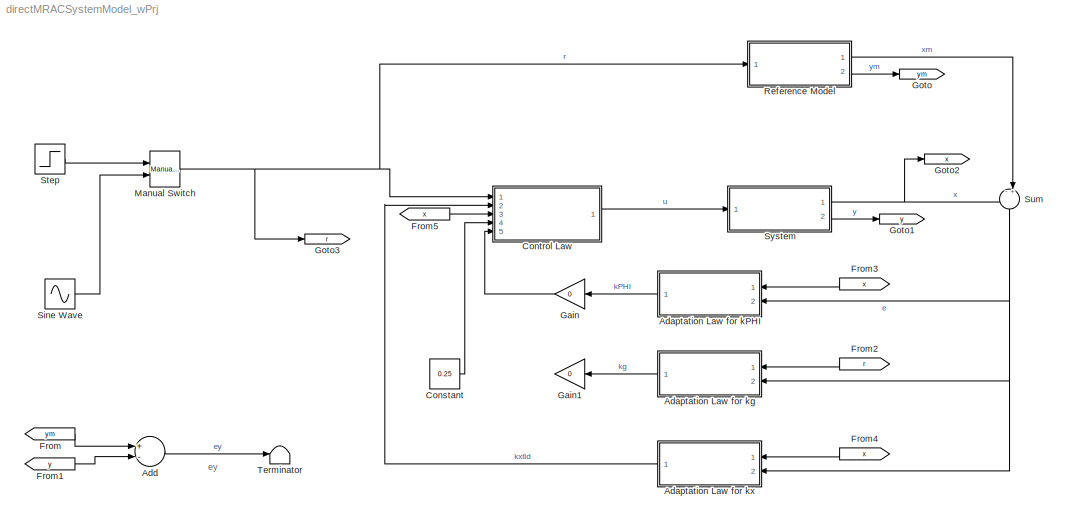
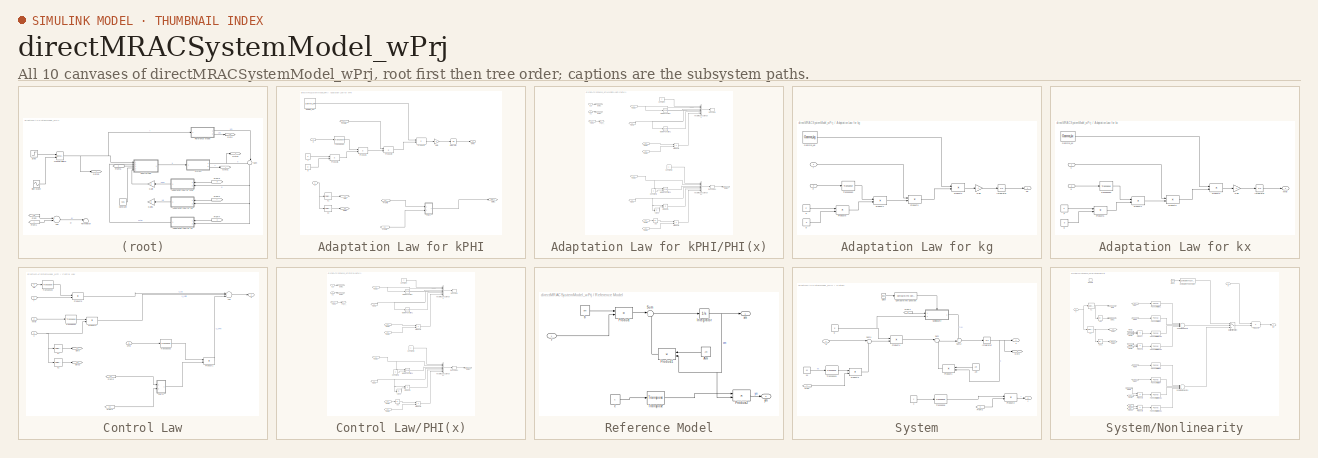
[diagram: thumbnail index - all 10 canvases of the model, root first then tree order]
MODEL directMRACSystemModel_wPrj
KIND model
CONFIG InitFcn = initDirectMRACSystemMode_wPrj
CONFIG StopFcn = plotlab
BLOCK [SubSystem] Adaptation Law for kPHI
  FunctionWithSeparateData = off
  MaskHideContents = off
  MinAlgLoopOccurrences = off
  Opaque = off
  Ports = [2, 1]
  PropExecContextOutsideSubsystem = off
  RTWSystemCode = Auto
  RequestExecContextInheritance = off
  TreatAsAtomicUnit = on
BLOCK [From] Adaptation Law for kPHI/From1
  GotoTag = PHI_x_
BLOCK [From] Adaptation Law for kPHI/From2
  GotoTag = x2
BLOCK [From] Adaptation Law for kPHI/From5
  GotoTag = x1
BLOCK [Gain] Adaptation Law for kPHI/Gain
  Gain = -1
  OutDataType = fixdt(1, 16)
  OutDataTypeMode = Inherit via internal rule
  OutDataTypeStr = Inherit: Inherit via internal rule
  OutScaling = 2^0
  ParamDataTypeStr = Inherit: Inherit via internal rule
  ParameterDataType = fixdt(1, 16)
  ParameterDataTypeMode = Inherit via internal rule
  ParameterScaling = 2^0
  SaturateOnIntegerOverflow = off
BLOCK [Constant] Adaptation Law for kPHI/Gamma_PHI
  OutDataType = fixdt(1, 16)
  OutScaling = 2^0
  Value = Gamma_PHI
  VectorParams1D = off
BLOCK [Goto] Adaptation Law for kPHI/Goto
  GotoTag = x1
  TagVisibility = local
BLOCK [Goto] Adaptation Law for kPHI/Goto1
  GotoTag = PHI_x_
  TagVisibility = local
BLOCK [Goto] Adaptation Law for kPHI/Goto2
  GotoTag = x2
  TagVisibility = local
BLOCK [Integrator] Adaptation Law for kPHI/Integrator
  InitialCondition = kphi0
  Ports = [1, 1]
BLOCK [Constant] Adaptation Law for kPHI/P
  OutDataType = fixdt(1, 16)
  OutScaling = 2^0
  Value = P
  VectorParams1D = off
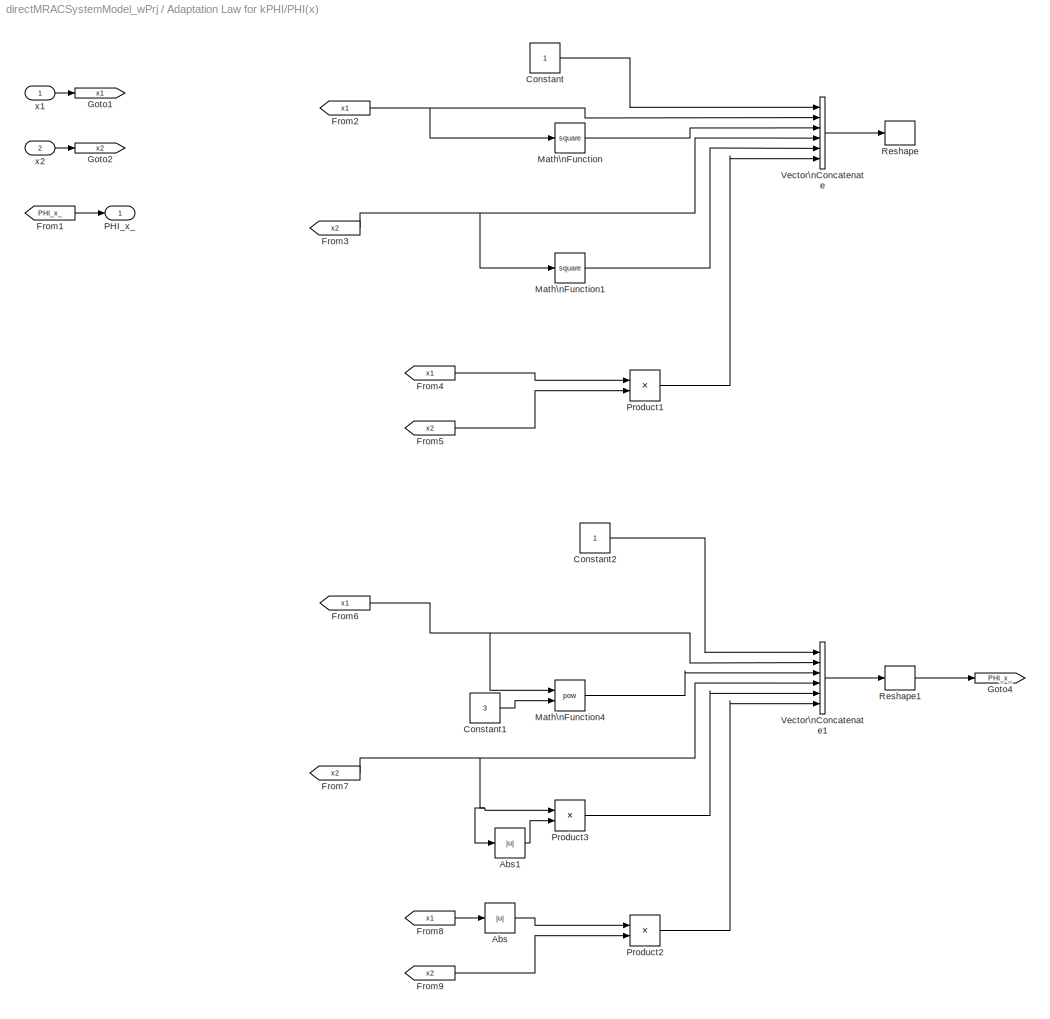
BLOCK [SubSystem] Adaptation Law for kPHI/PHI(x)
  FunctionWithSeparateData = off
  MaskHideContents = off
  MinAlgLoopOccurrences = off
  Opaque = off
  Ports = [2, 1]
  PropExecContextOutsideSubsystem = off
  RTWSystemCode = Auto
  RequestExecContextInheritance = off
BLOCK [Abs] Adaptation Law for kPHI/PHI(x)/Abs
  OutDataType = fixdt(1, 16)
  OutScaling = 2^0
  SaturateOnIntegerOverflow = off
BLOCK [Abs] Adaptation Law for kPHI/PHI(x)/Abs1
  OutDataType = fixdt(1, 16)
  OutScaling = 2^0
  SaturateOnIntegerOverflow = off
BLOCK [Constant] Adaptation Law for kPHI/PHI(x)/Constant
  OutDataType = fixdt(1, 16)
  OutScaling = 2^0
BLOCK [Constant] Adaptation Law for kPHI/PHI(x)/Constant1
  OutDataType = fixdt(1, 16)
  OutScaling = 2^0
  Value = 3
BLOCK [Constant] Adaptation Law for kPHI/PHI(x)/Constant2
  OutDataType = fixdt(1, 16)
  OutScaling = 2^0
BLOCK [From] Adaptation Law for kPHI/PHI(x)/From1
  GotoTag = PHI_x_
BLOCK [From] Adaptation Law for kPHI/PHI(x)/From2
  GotoTag = x1
BLOCK [From] Adaptation Law for kPHI/PHI(x)/From3
  GotoTag = x2
BLOCK [From] Adaptation Law for kPHI/PHI(x)/From4
  GotoTag = x1
BLOCK [From] Adaptation Law for kPHI/PHI(x)/From5
  GotoTag = x2
BLOCK [From] Adaptation Law for kPHI/PHI(x)/From6
  GotoTag = x1
BLOCK [From] Adaptation Law for kPHI/PHI(x)/From7
  GotoTag = x2
BLOCK [From] Adaptation Law for kPHI/PHI(x)/From8
  GotoTag = x1
BLOCK [From] Adaptation Law for kPHI/PHI(x)/From9
  GotoTag = x2
BLOCK [Goto] Adaptation Law for kPHI/PHI(x)/Goto1
  GotoTag = x1
  TagVisibility = local
BLOCK [Goto] Adaptation Law for kPHI/PHI(x)/Goto2
  GotoTag = x2
  TagVisibility = local
BLOCK [Goto] Adaptation Law for kPHI/PHI(x)/Goto4
  GotoTag = PHI_x_
  TagVisibility = local
BLOCK [Math] Adaptation Law for kPHI/PHI(x)/Math\nFunction
  Operator = square
  OutDataType = fixdt(1, 16)
  OutScaling = 2^0
  Ports = [1, 1]
BLOCK [Math] Adaptation Law for kPHI/PHI(x)/Math\nFunction1
  Operator = square
  OutDataType = fixdt(1, 16)
  OutScaling = 2^0
  Ports = [1, 1]
BLOCK [Math] Adaptation Law for kPHI/PHI(x)/Math\nFunction4
  Operator = pow
  OutDataType = fixdt(1, 16)
  OutScaling = 2^0
  Ports = [2, 1]
BLOCK [Outport] Adaptation Law for kPHI/PHI(x)/PHI_x_
  IconDisplay = Port number
BLOCK [Product] Adaptation Law for kPHI/PHI(x)/Product1
  InputSameDT = off
  OutDataType = fixdt(1, 16)
  OutDataTypeMode = Inherit via internal rule
  OutDataTypeStr = Inherit: Inherit via internal rule
  OutScaling = 2^0
  Ports = [2, 1]
  SaturateOnIntegerOverflow = off
BLOCK [Product] Adaptation Law for kPHI/PHI(x)/Product2
  InputSameDT = off
  OutDataType = fixdt(1, 16)
  OutDataTypeMode = Inherit via internal rule
  OutDataTypeStr = Inherit: Inherit via internal rule
  OutScaling = 2^0
  Ports = [2, 1]
  SaturateOnIntegerOverflow = off
BLOCK [Product] Adaptation Law for kPHI/PHI(x)/Product3
  InputSameDT = off
  OutDataType = fixdt(1, 16)
  OutDataTypeMode = Inherit via internal rule
  OutDataTypeStr = Inherit: Inherit via internal rule
  OutScaling = 2^0
  Ports = [2, 1]
  SaturateOnIntegerOverflow = off
BLOCK [Reshape] Adaptation Law for kPHI/PHI(x)/Reshape
  OutputDimensionality = Column vector (2-D)
  Ports = [1, 1]
BLOCK [Reshape] Adaptation Law for kPHI/PHI(x)/Reshape1
  OutputDimensionality = Column vector (2-D)
  Ports = [1, 1]
BLOCK [Concatenate] Adaptation Law for kPHI/PHI(x)/Vector\nConcatenate
  Mode = Vector
  NumInputs = 6
  Ports = [6, 1]
BLOCK [Concatenate] Adaptation Law for kPHI/PHI(x)/Vector\nConcatenate1
  Mode = Vector
  NumInputs = 6
  Ports = [6, 1]
BLOCK [Inport] Adaptation Law for kPHI/PHI(x)/x1
  IconDisplay = Port number
BLOCK [Inport] Adaptation Law for kPHI/PHI(x)/x2
  IconDisplay = Port number
  Port = 2
BLOCK [Product] Adaptation Law for kPHI/Product1
  InputSameDT = off
  Multiplication = Matrix(*)
  OutDataType = fixdt(1, 16)
  OutDataTypeMode = Inherit via internal rule
  OutDataTypeStr = Inherit: Inherit via internal rule
  OutScaling = 2^0
  Ports = [2, 1]
  SaturateOnIntegerOverflow = off
BLOCK [Product] Adaptation Law for kPHI/Product2
  InputSameDT = off
  Multiplication = Matrix(*)
  OutDataType = fixdt(1, 16)
  OutDataTypeMode = Inherit via internal rule
  OutDataTypeStr = Inherit: Inherit via internal rule
  OutScaling = 2^0
  Ports = [2, 1]
  SaturateOnIntegerOverflow = off
BLOCK [Product] Adaptation Law for kPHI/Product3
  InputSameDT = off
  Multiplication = Matrix(*)
  OutDataType = fixdt(1, 16)
  OutDataTypeMode = Inherit via internal rule
  OutDataTypeStr = Inherit: Inherit via internal rule
  OutScaling = 2^0
  Ports = [2, 1]
  SaturateOnIntegerOverflow = off
BLOCK [Product] Adaptation Law for kPHI/Product5
  InputSameDT = off
  Multiplication = Matrix(*)
  OutDataType = fixdt(1, 16)
  OutDataTypeMode = Inherit via internal rule
  OutDataTypeStr = Inherit: Inherit via internal rule
  OutScaling = 2^0
  Ports = [2, 1]
  SaturateOnIntegerOverflow = off
BLOCK [Reference] Adaptation Law for kPHI/Transpose2  REF=dspmtrx3/Transpose
  FunctionWithSeparateData = off
  Hermitian = off
  Ports = [1, 1]
  RTWMemSecDataConstants = Inherit from model
  RTWMemSecDataInternal = Inherit from model
  RTWMemSecDataParameters = Inherit from model
  RTWMemSecFuncExecute = Inherit from model
  RTWMemSecFuncInitTerm = Inherit from model
  ShowPortLabels = FromPortIcon
  SourceBlock = dspmtrx3/Transpose
  SourceType = Transpose
  SystemSampleTime = -1
  overflowFlag = off
BLOCK [Constant] Adaptation Law for kPHI/b
  OutDataType = fixdt(1, 16)
  OutScaling = 2^0
  Value = b
  VectorParams1D = off
BLOCK [Inport] Adaptation Law for kPHI/e
  IconDisplay = Port number
  OutDataType = fixdt(1, 16)
  OutScaling = 2^0
  Port = 2
BLOCK [Outport] Adaptation Law for kPHI/kPHI
  IconDisplay = Port number
  OutDataType = fixdt(1, 16)
  OutScaling = 2^0
BLOCK [Inport] Adaptation Law for kPHI/x
  IconDisplay = Port number
  OutDataType = fixdt(1, 16)
  OutScaling = 2^0
BLOCK [Selector] Adaptation Law for kPHI/x1
  IndexOptions = Index vector (dialog)
  Indices = [1 ]
  InputPortWidth = 2
  OutputSizes = 1
  Ports = [1, 1]
BLOCK [Selector] Adaptation Law for kPHI/x2
  IndexOptions = Index vector (dialog)
  Indices = 2
  InputPortWidth = 2
  OutputSizes = 1
  Ports = [1, 1]
BLOCK [SubSystem] Adaptation Law for kg
  FunctionWithSeparateData = off
  MaskHideContents = off
  MinAlgLoopOccurrences = off
  Opaque = off
  Ports = [2, 1]
  PropExecContextOutsideSubsystem = off
  RTWSystemCode = Auto
  RequestExecContextInheritance = off
  TreatAsAtomicUnit = on
BLOCK [Gain] Adaptation Law for kg/Gain
  Gain = -1
  OutDataType = fixdt(1, 16)
  OutDataTypeMode = Inherit via internal rule
  OutDataTypeStr = Inherit: Inherit via internal rule
  OutScaling = 2^0
  ParamDataTypeStr = Inherit: Inherit via internal rule
  ParameterDataType = fixdt(1, 16)
  ParameterDataTypeMode = Inherit via internal rule
  ParameterScaling = 2^0
  SaturateOnIntegerOverflow = off
BLOCK [Constant] Adaptation Law for kg/Gamma_kg
  OutDataType = fixdt(1, 16)
  OutScaling = 2^0
  Value = Gamma_kg
  VectorParams1D = off
BLOCK [Integrator] Adaptation Law for kg/Integrator
  InitialCondition = kg0
  Ports = [1, 1]
BLOCK [Constant] Adaptation Law for kg/P
  OutDataType = fixdt(1, 16)
  OutScaling = 2^0
  Value = P
  VectorParams1D = off
BLOCK [Product] Adaptation Law for kg/Product1
  InputSameDT = off
  Multiplication = Matrix(*)
  OutDataType = fixdt(1, 16)
  OutDataTypeMode = Inherit via internal rule
  OutDataTypeStr = Inherit: Inherit via internal rule
  OutScaling = 2^0
  Ports = [2, 1]
  SaturateOnIntegerOverflow = off
BLOCK [Product] Adaptation Law for kg/Product2
  InputSameDT = off
  Multiplication = Matrix(*)
  OutDataType = fixdt(1, 16)
  OutDataTypeMode = Inherit via internal rule
  OutDataTypeStr = Inherit: Inherit via internal rule
  OutScaling = 2^0
  Ports = [2, 1]
  SaturateOnIntegerOverflow = off
BLOCK [Product] Adaptation Law for kg/Product3
  InputSameDT = off
  Multiplication = Matrix(*)
  OutDataType = fixdt(1, 16)
  OutDataTypeMode = Inherit via internal rule
  OutDataTypeStr = Inherit: Inherit via internal rule
  OutScaling = 2^0
  Ports = [2, 1]
  SaturateOnIntegerOverflow = off
BLOCK [Product] Adaptation Law for kg/Product5
  InputSameDT = off
  Multiplication = Matrix(*)
  OutDataType = fixdt(1, 16)
  OutDataTypeMode = Inherit via internal rule
  OutDataTypeStr = Inherit: Inherit via internal rule
  OutScaling = 2^0
  Ports = [2, 1]
  SaturateOnIntegerOverflow = off
BLOCK [Reference] Adaptation Law for kg/Transpose2  REF=dspmtrx3/Transpose
  FunctionWithSeparateData = off
  Hermitian = off
  Ports = [1, 1]
  RTWMemSecDataConstants = Inherit from model
  RTWMemSecDataInternal = Inherit from model
  RTWMemSecDataParameters = Inherit from model
  RTWMemSecFuncExecute = Inherit from model
  RTWMemSecFuncInitTerm = Inherit from model
  ShowPortLabels = FromPortIcon
  SourceBlock = dspmtrx3/Transpose
  SourceType = Transpose
  SystemSampleTime = -1
  overflowFlag = off
BLOCK [Constant] Adaptation Law for kg/b
  OutDataType = fixdt(1, 16)
  OutScaling = 2^0
  Value = b
  VectorParams1D = off
BLOCK [Inport] Adaptation Law for kg/e
  IconDisplay = Port number
  OutDataType = fixdt(1, 16)
  OutScaling = 2^0
  Port = 2
BLOCK [Outport] Adaptation Law for kg/kg
  IconDisplay = Port number
  OutDataType = fixdt(1, 16)
  OutScaling = 2^0
BLOCK [Inport] Adaptation Law for kg/r
  IconDisplay = Port number
  OutDataType = fixdt(1, 16)
  OutScaling = 2^0
BLOCK [SubSystem] Adaptation Law for kx
  FunctionWithSeparateData = off
  MaskHideContents = off
  MinAlgLoopOccurrences = off
  Opaque = off
  Ports = [2, 1]
  PropExecContextOutsideSubsystem = off
  RTWSystemCode = Auto
  RequestExecContextInheritance = off
  TreatAsAtomicUnit = on
BLOCK [Gain] Adaptation Law for kx/Gain
  Gain = -1
  OutDataType = fixdt(1, 16)
  OutDataTypeMode = Inherit via internal rule
  OutDataTypeStr = Inherit: Inherit via internal rule
  OutScaling = 2^0
  ParamDataTypeStr = Inherit: Inherit via internal rule
  ParameterDataType = fixdt(1, 16)
  ParameterDataTypeMode = Inherit via internal rule
  ParameterScaling = 2^0
  SaturateOnIntegerOverflow = off
BLOCK [Constant] Adaptation Law for kx/Gamma_kx
  OutDataType = fixdt(1, 16)
  OutScaling = 2^0
  Value = Gamma_kx
  VectorParams1D = off
BLOCK [Integrator] Adaptation Law for kx/Integrator
  InitialCondition = kxtld0
  Ports = [1, 1]
BLOCK [Constant] Adaptation Law for kx/P
  OutDataType = fixdt(1, 16)
  OutScaling = 2^0
  Value = P
  VectorParams1D = off
BLOCK [Product] Adaptation Law for kx/Product1
  InputSameDT = off
  Multiplication = Matrix(*)
  OutDataType = fixdt(1, 16)
  OutDataTypeMode = Inherit via internal rule
  OutDataTypeStr = Inherit: Inherit via internal rule
  OutScaling = 2^0
  Ports = [2, 1]
  SaturateOnIntegerOverflow = off
BLOCK [Product] Adaptation Law for kx/Product2
  InputSameDT = off
  Multiplication = Matrix(*)
  OutDataType = fixdt(1, 16)
  OutDataTypeMode = Inherit via internal rule
  OutDataTypeStr = Inherit: Inherit via internal rule
  OutScaling = 2^0
  Ports = [2, 1]
  SaturateOnIntegerOverflow = off
BLOCK [Product] Adaptation Law for kx/Product3
  InputSameDT = off
  Multiplication = Matrix(*)
  OutDataType = fixdt(1, 16)
  OutDataTypeMode = Inherit via internal rule
  OutDataTypeStr = Inherit: Inherit via internal rule
  OutScaling = 2^0
  Ports = [2, 1]
  SaturateOnIntegerOverflow = off
BLOCK [Product] Adaptation Law for kx/Product5
  InputSameDT = off
  Multiplication = Matrix(*)
  OutDataType = fixdt(1, 16)
  OutDataTypeMode = Inherit via internal rule
  OutDataTypeStr = Inherit: Inherit via internal rule
  OutScaling = 2^0
  Ports = [2, 1]
  SaturateOnIntegerOverflow = off
BLOCK [Reference] Adaptation Law for kx/Transpose2  REF=dspmtrx3/Transpose
  FunctionWithSeparateData = off
  Hermitian = off
  Ports = [1, 1]
  RTWMemSecDataConstants = Inherit from model
  RTWMemSecDataInternal = Inherit from model
  RTWMemSecDataParameters = Inherit from model
  RTWMemSecFuncExecute = Inherit from model
  RTWMemSecFuncInitTerm = Inherit from model
  ShowPortLabels = FromPortIcon
  SourceBlock = dspmtrx3/Transpose
  SourceType = Transpose
  SystemSampleTime = -1
  overflowFlag = off
BLOCK [Constant] Adaptation Law for kx/b
  OutDataType = fixdt(1, 16)
  OutScaling = 2^0
  Value = b
  VectorParams1D = off
BLOCK [Inport] Adaptation Law for kx/e
  IconDisplay = Port number
  OutDataType = fixdt(1, 16)
  OutScaling = 2^0
  Port = 2
BLOCK [Outport] Adaptation Law for kx/kxtld
  IconDisplay = Port number
  OutDataType = fixdt(1, 16)
  OutScaling = 2^0
BLOCK [Inport] Adaptation Law for kx/x
  IconDisplay = Port number
  OutDataType = fixdt(1, 16)
  OutScaling = 2^0
BLOCK [Sum] Add
  InputSameDT = off
  Inputs = +-
  OutDataType = fixdt(1, 16)
  OutDataTypeMode = Inherit via internal rule
  OutDataTypeStr = Inherit: Inherit via internal rule
  OutScaling = 2^-10
  Ports = [2, 1]
  SaturateOnIntegerOverflow = off
BLOCK [Constant] Constant
  OutDataType = fixdt(1, 16)
  OutScaling = 2^0
  Value = 0.25
BLOCK [SubSystem] Control Law
  FunctionWithSeparateData = off
  MaskHideContents = off
  MinAlgLoopOccurrences = off
  Opaque = off
  Ports = [5, 1]
  PropExecContextOutsideSubsystem = off
  RTWSystemCode = Auto
  RequestExecContextInheritance = off
  TreatAsAtomicUnit = on
BLOCK [Sum] Control Law/Add
  InputSameDT = off
  Inputs = +--
  OutDataType = fixdt(1, 16)
  OutDataTypeMode = Inherit via internal rule
  OutDataTypeStr = Inherit: Inherit via internal rule
  OutScaling = 2^-10
  Ports = [3, 1]
  SaturateOnIntegerOverflow = off
BLOCK [From] Control Law/From2
  GotoTag = x2
BLOCK [From] Control Law/From5
  GotoTag = x1
BLOCK [Goto] Control Law/Goto
  GotoTag = x1
  TagVisibility = local
BLOCK [Goto] Control Law/Goto2
  GotoTag = x2
  TagVisibility = local
BLOCK [SubSystem] Control Law/PHI(x)
  FunctionWithSeparateData = off
  MaskHideContents = off
  MinAlgLoopOccurrences = off
  Opaque = off
  Ports = [2, 1]
  PropExecContextOutsideSubsystem = off
  RTWSystemCode = Auto
  RequestExecContextInheritance = off
BLOCK [Abs] Control Law/PHI(x)/Abs
  OutDataType = fixdt(1, 16)
  OutScaling = 2^0
  SaturateOnIntegerOverflow = off
BLOCK [Abs] Control Law/PHI(x)/Abs1
  OutDataType = fixdt(1, 16)
  OutScaling = 2^0
  SaturateOnIntegerOverflow = off
BLOCK [Constant] Control Law/PHI(x)/Constant
  OutDataType = fixdt(1, 16)
  OutScaling = 2^0
BLOCK [Constant] Control Law/PHI(x)/Constant1
  OutDataType = fixdt(1, 16)
  OutScaling = 2^0
  Value = 3
BLOCK [Constant] Control Law/PHI(x)/Constant2
  OutDataType = fixdt(1, 16)
  OutScaling = 2^0
BLOCK [From] Control Law/PHI(x)/From1
  GotoTag = PHI_x_
BLOCK [From] Control Law/PHI(x)/From2
  GotoTag = x1
BLOCK [From] Control Law/PHI(x)/From3
  GotoTag = x2
BLOCK [From] Control Law/PHI(x)/From4
  GotoTag = x1
BLOCK [From] Control Law/PHI(x)/From5
  GotoTag = x2
BLOCK [From] Control Law/PHI(x)/From6
  GotoTag = x1
BLOCK [From] Control Law/PHI(x)/From7
  GotoTag = x2
BLOCK [From] Control Law/PHI(x)/From8
  GotoTag = x1
BLOCK [From] Control Law/PHI(x)/From9
  GotoTag = x2
BLOCK [Goto] Control Law/PHI(x)/Goto1
  GotoTag = x1
  TagVisibility = local
BLOCK [Goto] Control Law/PHI(x)/Goto2
  GotoTag = x2
  TagVisibility = local
BLOCK [Goto] Control Law/PHI(x)/Goto4
  GotoTag = PHI_x_
  TagVisibility = local
BLOCK [Math] Control Law/PHI(x)/Math\nFunction
  Operator = square
  OutDataType = fixdt(1, 16)
  OutScaling = 2^0
  Ports = [1, 1]
BLOCK [Math] Control Law/PHI(x)/Math\nFunction1
  Operator = square
  OutDataType = fixdt(1, 16)
  OutScaling = 2^0
  Ports = [1, 1]
BLOCK [Math] Control Law/PHI(x)/Math\nFunction4
  Operator = pow
  OutDataType = fixdt(1, 16)
  OutScaling = 2^0
  Ports = [2, 1]
BLOCK [Outport] Control Law/PHI(x)/PHI_x_
  IconDisplay = Port number
BLOCK [Product] Control Law/PHI(x)/Product1
  InputSameDT = off
  OutDataType = fixdt(1, 16)
  OutDataTypeMode = Inherit via internal rule
  OutDataTypeStr = Inherit: Inherit via internal rule
  OutScaling = 2^0
  Ports = [2, 1]
  SaturateOnIntegerOverflow = off
BLOCK [Product] Control Law/PHI(x)/Product2
  InputSameDT = off
  OutDataType = fixdt(1, 16)
  OutDataTypeMode = Inherit via internal rule
  OutDataTypeStr = Inherit: Inherit via internal rule
  OutScaling = 2^0
  Ports = [2, 1]
  SaturateOnIntegerOverflow = off
BLOCK [Product] Control Law/PHI(x)/Product3
  InputSameDT = off
  OutDataType = fixdt(1, 16)
  OutDataTypeMode = Inherit via internal rule
  OutDataTypeStr = Inherit: Inherit via internal rule
  OutScaling = 2^0
  Ports = [2, 1]
  SaturateOnIntegerOverflow = off
BLOCK [Reshape] Control Law/PHI(x)/Reshape
  OutputDimensionality = Column vector (2-D)
  Ports = [1, 1]
BLOCK [Reshape] Control Law/PHI(x)/Reshape1
  OutputDimensionality = Column vector (2-D)
  Ports = [1, 1]
BLOCK [Concatenate] Control Law/PHI(x)/Vector\nConcatenate
  Mode = Vector
  NumInputs = 6
  Ports = [6, 1]
BLOCK [Concatenate] Control Law/PHI(x)/Vector\nConcatenate1
  Mode = Vector
  NumInputs = 6
  Ports = [6, 1]
BLOCK [Inport] Control Law/PHI(x)/x1
  IconDisplay = Port number
BLOCK [Inport] Control Law/PHI(x)/x2
  IconDisplay = Port number
  Port = 2
BLOCK [Product] Control Law/Product1
  InputSameDT = off
  Multiplication = Matrix(*)
  OutDataType = fixdt(1, 16)
  OutDataTypeMode = Inherit via internal rule
  OutDataTypeStr = Inherit: Inherit via internal rule
  OutScaling = 2^0
  Ports = [2, 1]
  SaturateOnIntegerOverflow = off
BLOCK [Product] Control Law/Product3
  InputSameDT = off
  Multiplication = Matrix(*)
  OutDataType = fixdt(1, 16)
  OutDataTypeMode = Inherit via internal rule
  OutDataTypeStr = Inherit: Inherit via internal rule
  OutScaling = 2^0
  Ports = [2, 1]
  SaturateOnIntegerOverflow = off
BLOCK [Product] Control Law/Product5
  InputSameDT = off
  Multiplication = Matrix(*)
  OutDataType = fixdt(1, 16)
  OutDataTypeMode = Inherit via internal rule
  OutDataTypeStr = Inherit: Inherit via internal rule
  OutScaling = 2^0
  Ports = [2, 1]
  SaturateOnIntegerOverflow = off
BLOCK [Reference] Control Law/Transpose1  REF=dspmtrx3/Transpose
  FunctionWithSeparateData = off
  Hermitian = off
  Ports = [1, 1]
  RTWMemSecDataConstants = Inherit from model
  RTWMemSecDataInternal = Inherit from model
  RTWMemSecDataParameters = Inherit from model
  RTWMemSecFuncExecute = Inherit from model
  RTWMemSecFuncInitTerm = Inherit from model
  ShowPortLabels = FromPortIcon
  SourceBlock = dspmtrx3/Transpose
  SourceType = Transpose
  SystemSampleTime = -1
  overflowFlag = off
BLOCK [Reference] Control Law/Transpose2  REF=dspmtrx3/Transpose
  FunctionWithSeparateData = off
  Hermitian = off
  Ports = [1, 1]
  RTWMemSecDataConstants = Inherit from model
  RTWMemSecDataInternal = Inherit from model
  RTWMemSecDataParameters = Inherit from model
  RTWMemSecFuncExecute = Inherit from model
  RTWMemSecFuncInitTerm = Inherit from model
  ShowPortLabels = FromPortIcon
  SourceBlock = dspmtrx3/Transpose
  SourceType = Transpose
  SystemSampleTime = -1
  overflowFlag = off
BLOCK [Reference] Control Law/Transpose3  REF=dspmtrx3/Transpose
  FunctionWithSeparateData = off
  Hermitian = off
  Ports = [1, 1]
  RTWMemSecDataConstants = Inherit from model
  RTWMemSecDataInternal = Inherit from model
  RTWMemSecDataParameters = Inherit from model
  RTWMemSecFuncExecute = Inherit from model
  RTWMemSecFuncInitTerm = Inherit from model
  ShowPortLabels = FromPortIcon
  SourceBlock = dspmtrx3/Transpose
  SourceType = Transpose
  SystemSampleTime = -1
  overflowFlag = off
BLOCK [Inport] Control Law/kPHI
  IconDisplay = Port number
  OutDataType = fixdt(1, 16)
  OutScaling = 2^0
  Port = 5
BLOCK [Inport] Control Law/kg
  IconDisplay = Port number
  OutDataType = fixdt(1, 16)
  OutScaling = 2^0
  Port = 4
BLOCK [Inport] Control Law/kxtld
  IconDisplay = Port number
  OutDataType = fixdt(1, 16)
  OutScaling = 2^0
  Port = 2
BLOCK [Inport] Control Law/r
  IconDisplay = Port number
  OutDataType = fixdt(1, 16)
  OutScaling = 2^0
BLOCK [Outport] Control Law/u
  IconDisplay = Port number
  OutDataType = fixdt(1, 16)
  OutScaling = 2^0
BLOCK [Inport] Control Law/x
  IconDisplay = Port number
  OutDataType = fixdt(1, 16)
  OutScaling = 2^0
  Port = 3
BLOCK [Selector] Control Law/x1
  IndexOptions = Index vector (dialog)
  Indices = [1 ]
  InputPortWidth = 2
  OutputSizes = 1
  Ports = [1, 1]
BLOCK [Selector] Control Law/x2
  IndexOptions = Index vector (dialog)
  Indices = 2
  InputPortWidth = 2
  OutputSizes = 1
  Ports = [1, 1]
BLOCK [From] From
  GotoTag = ym
BLOCK [From] From1
  GotoTag = y
BLOCK [From] From2
  GotoTag = r
BLOCK [From] From3
  GotoTag = x
BLOCK [From] From4
  GotoTag = x
BLOCK [From] From5
  GotoTag = x
BLOCK [Gain] Gain
  Gain = 0
  OutDataType = fixdt(1, 16)
  OutDataTypeMode = Inherit via internal rule
  OutDataTypeStr = Inherit: Inherit via internal rule
  OutScaling = 2^0
  ParamDataTypeStr = Inherit: Inherit via internal rule
  ParameterDataType = fixdt(1, 16)
  ParameterDataTypeMode = Inherit via internal rule
  ParameterScaling = 2^0
  SaturateOnIntegerOverflow = off
BLOCK [Gain] Gain1
  Gain = 0
  OutDataType = fixdt(1, 16)
  OutDataTypeMode = Inherit via internal rule
  OutDataTypeStr = Inherit: Inherit via internal rule
  OutScaling = 2^0
  ParamDataTypeStr = Inherit: Inherit via internal rule
  ParameterDataType = fixdt(1, 16)
  ParameterDataTypeMode = Inherit via internal rule
  ParameterScaling = 2^0
  SaturateOnIntegerOverflow = off
BLOCK [Goto] Goto
  GotoTag = ym
  TagVisibility = local
BLOCK [Goto] Goto1
  GotoTag = y
  TagVisibility = local
BLOCK [Goto] Goto2
  GotoTag = x
  TagVisibility = local
BLOCK [Goto] Goto3
  GotoTag = r
  TagVisibility = local
BLOCK [Reference] Manual Switch  REF=simulink/Signal\nRouting/Manual Switch
  FunctionWithSeparateData = off
  Ports = [2, 1]
  RTWMemSecDataConstants = Inherit from model
  RTWMemSecDataInternal = Inherit from model
  RTWMemSecDataParameters = Inherit from model
  RTWMemSecFuncExecute = Inherit from model
  RTWMemSecFuncInitTerm = Inherit from model
  ShowPortLabels = FromPortIcon
  SourceBlock = simulink/Signal\nRouting/Manual Switch
  SourceType = Manual Switch
  SystemSampleTime = -1
  action = 0
  sw = 0
  varsize = off
BLOCK [SubSystem] Reference Model
  FunctionWithSeparateData = off
  MaskHideContents = off
  MinAlgLoopOccurrences = off
  Opaque = off
  Ports = [1, 2]
  PropExecContextOutsideSubsystem = off
  RTWSystemCode = Auto
  RequestExecContextInheritance = off
  TreatAsAtomicUnit = on
BLOCK [Constant] Reference Model/Am
  OutDataType = fixdt(1, 16)
  OutScaling = 2^0
  Value = Am
  VectorParams1D = off
BLOCK [Integrator] Reference Model/Integrator
  InitialCondition = xm0
  Ports = [1, 1]
BLOCK [Product] Reference Model/Product
  InputSameDT = off
  Multiplication = Matrix(*)
  OutDataType = fixdt(1, 16)
  OutDataTypeMode = Inherit via internal rule
  OutDataTypeStr = Inherit: Inherit via internal rule
  OutScaling = 2^0
  Ports = [2, 1]
  SaturateOnIntegerOverflow = off
BLOCK [Product] Reference Model/Product1
  InputSameDT = off
  Multiplication = Matrix(*)
  OutDataType = fixdt(1, 16)
  OutDataTypeMode = Inherit via internal rule
  OutDataTypeStr = Inherit: Inherit via internal rule
  OutScaling = 2^0
  Ports = [2, 1]
  SaturateOnIntegerOverflow = off
BLOCK [Product] Reference Model/Product2
  InputSameDT = off
  Multiplication = Matrix(*)
  OutDataType = fixdt(1, 16)
  OutDataTypeMode = Inherit via internal rule
  OutDataTypeStr = Inherit: Inherit via internal rule
  OutScaling = 2^0
  Ports = [2, 1]
  SaturateOnIntegerOverflow = off
BLOCK [Sum] Reference Model/Sum
  IconShape = round
  InputSameDT = off
  Inputs = |++
  OutDataType = fixdt(1, 16)
  OutDataTypeMode = Inherit via internal rule
  OutDataTypeStr = Inherit: Inherit via internal rule
  OutScaling = 2^0
  Ports = [2, 1]
  SaturateOnIntegerOverflow = off
BLOCK [Reference] Reference Model/Transpose  REF=dspmtrx3/Transpose
  FunctionWithSeparateData = off
  Hermitian = off
  Ports = [1, 1]
  RTWMemSecDataConstants = Inherit from model
  RTWMemSecDataInternal = Inherit from model
  RTWMemSecDataParameters = Inherit from model
  RTWMemSecFuncExecute = Inherit from model
  RTWMemSecFuncInitTerm = Inherit from model
  ShowPortLabels = FromPortIcon
  SourceBlock = dspmtrx3/Transpose
  SourceType = Transpose
  SystemSampleTime = -1
  overflowFlag = off
BLOCK [Constant] Reference Model/b
  OutDataType = fixdt(1, 16)
  OutScaling = 2^0
  Value = bm
  VectorParams1D = off
BLOCK [Constant] Reference Model/c
  OutDataType = fixdt(1, 16)
  OutScaling = 2^0
  Value = c
  VectorParams1D = off
BLOCK [Inport] Reference Model/r
  IconDisplay = Port number
  OutDataType = fixdt(1, 16)
  OutScaling = 2^0
BLOCK [Outport] Reference Model/xm
  IconDisplay = Port number
  OutDataType = fixdt(1, 16)
  OutScaling = 2^0
BLOCK [Outport] Reference Model/ym
  IconDisplay = Port number
  OutDataType = fixdt(1, 16)
  OutScaling = 2^0
  Port = 2
BLOCK [Sin] Sine Wave
  Amplitude = -2
  Bias = 0
  Frequency = 0.15
  Offset = 0
  Phase = 0
  Ports = [0, 1]
  SampleTime = 0
  Samples = 10
BLOCK [Step] Step
  SampleTime = 0
  VectorParams1D = off
BLOCK [Sum] Sum
  IconShape = round
  InputSameDT = off
  Inputs = -+|
  OutDataType = fixdt(1, 16)
  OutDataTypeMode = Inherit via internal rule
  OutDataTypeStr = Inherit: Inherit via internal rule
  OutScaling = 2^0
  Ports = [2, 1]
  SaturateOnIntegerOverflow = off
BLOCK [SubSystem] System
  FunctionWithSeparateData = off
  MaskHideContents = off
  MinAlgLoopOccurrences = on
  Opaque = off
  Ports = [1, 2]
  PropExecContextOutsideSubsystem = off
  RTWSystemCode = Auto
  RequestExecContextInheritance = off
  TreatAsAtomicUnit = on
BLOCK [Constant] System/Am
  OutDataType = fixdt(1, 16)
  OutScaling = 2^0
  Value = Am
  VectorParams1D = off
BLOCK [Clock] System/Clock
  Decimation = 10
BLOCK [Reference] System/Compare\nTo Constant  REF=simulink/Logic and Bit\nOperations/Compare\nTo Constant
  FunctionWithSeparateData = off
  LogicOutDataTypeMode = uint8
  Ports = [1, 1]
  RTWMemSecDataConstants = Inherit from model
  RTWMemSecDataInternal = Inherit from model
  RTWMemSecDataParameters = Inherit from model
  RTWMemSecFuncExecute = Inherit from model
  RTWMemSecFuncInitTerm = Inherit from model
  ShowPortLabels = FromPortIcon
  SourceBlock = simulink/Logic and Bit\nOperations/Compare\nTo Constant
  SourceType = Compare To Constant
  SystemSampleTime = -1
  ZeroCross = off
  const = tNonlinEnable
  relop = >=
BLOCK [From] System/From
  GotoTag = x
BLOCK [From] System/From1
  GotoTag = x
BLOCK [From] System/From2
  GotoTag = x
BLOCK [Goto] System/Goto
  GotoTag = x
  TagVisibility = local
BLOCK [Integrator] System/Integrator
  InitialCondition = x0
  Ports = [1, 1]
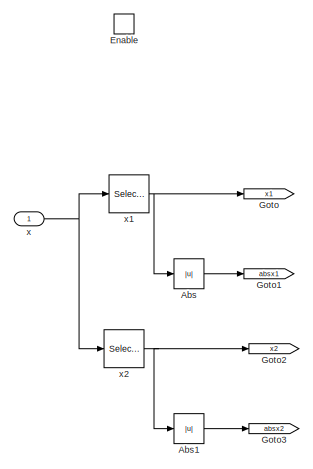
[diagram: System/Nonlinearity - part 1/2, top left region]
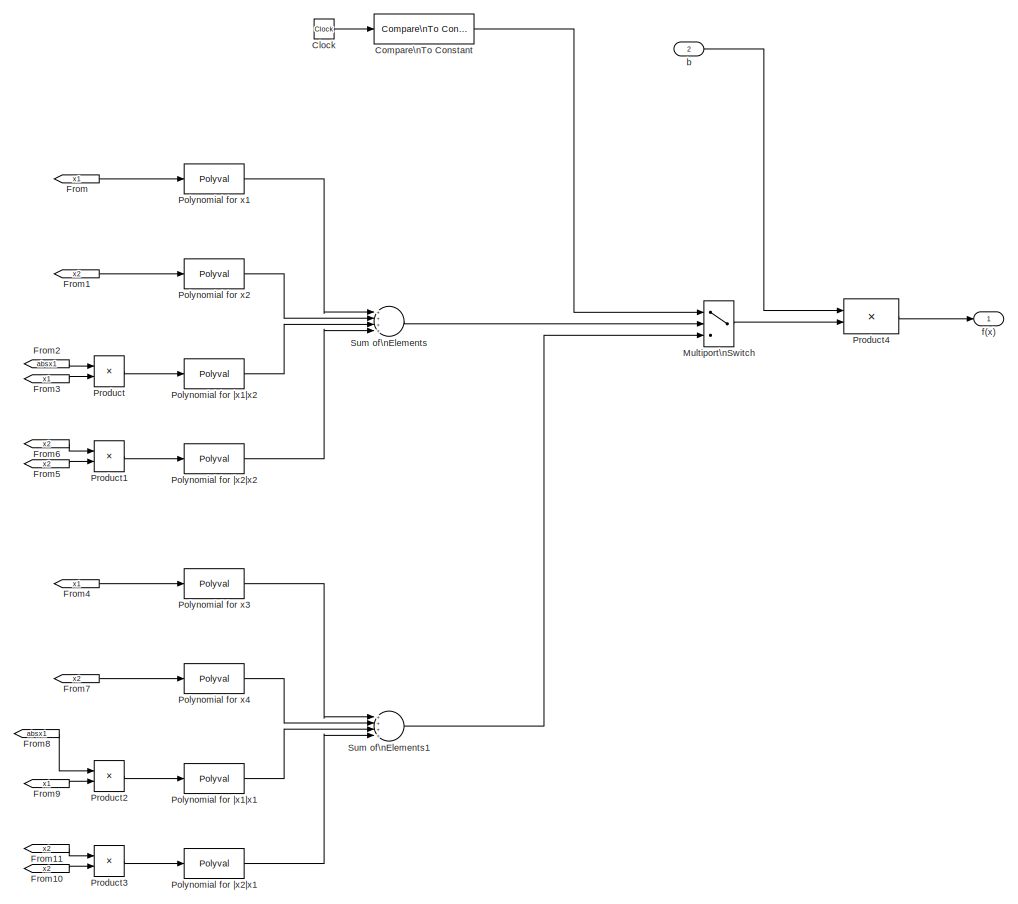
[diagram: System/Nonlinearity - part 2/2, most of the canvas]
BLOCK [SubSystem] System/Nonlinearity
  FunctionWithSeparateData = off
  MaskHideContents = off
  MinAlgLoopOccurrences = off
  Opaque = off
  Ports = [2, 1, 1]
  PropExecContextOutsideSubsystem = off
  RTWSystemCode = Auto
  RequestExecContextInheritance = off
  TreatAsAtomicUnit = on
BLOCK [Abs] System/Nonlinearity/Abs
  OutDataType = fixdt(1, 16)
  OutScaling = 2^0
  SaturateOnIntegerOverflow = off
BLOCK [Abs] System/Nonlinearity/Abs1
  OutDataType = fixdt(1, 16)
  OutScaling = 2^0
  SaturateOnIntegerOverflow = off
BLOCK [Clock] System/Nonlinearity/Clock
  Decimation = 10
BLOCK [Reference] System/Nonlinearity/Compare\nTo Constant  REF=simulink/Logic and Bit\nOperations/Compare\nTo Constant
  FunctionWithSeparateData = off
  LogicOutDataTypeMode = uint8
  Ports = [1, 1]
  RTWMemSecDataConstants = Inherit from model
  RTWMemSecDataInternal = Inherit from model
  RTWMemSecDataParameters = Inherit from model
  RTWMemSecFuncExecute = Inherit from model
  RTWMemSecFuncInitTerm = Inherit from model
  ShowPortLabels = FromPortIcon
  SourceBlock = simulink/Logic and Bit\nOperations/Compare\nTo Constant
  SourceType = Compare To Constant
  SystemSampleTime = -1
  ZeroCross = off
  const = tNonlinChange
  relop = >=
BLOCK [EnablePort] System/Nonlinearity/Enable
  Ports = []
BLOCK [From] System/Nonlinearity/From
  GotoTag = x1
BLOCK [From] System/Nonlinearity/From1
  GotoTag = x2
BLOCK [From] System/Nonlinearity/From10
  GotoTag = x2
BLOCK [From] System/Nonlinearity/From11
  GotoTag = x2
BLOCK [From] System/Nonlinearity/From2
  GotoTag = absx1
BLOCK [From] System/Nonlinearity/From3
  GotoTag = x1
BLOCK [From] System/Nonlinearity/From4
  GotoTag = x1
BLOCK [From] System/Nonlinearity/From5
  GotoTag = x2
BLOCK [From] System/Nonlinearity/From6
  GotoTag = x2
BLOCK [From] System/Nonlinearity/From7
  GotoTag = x2
BLOCK [From] System/Nonlinearity/From8
  GotoTag = absx1
BLOCK [From] System/Nonlinearity/From9
  GotoTag = x1
BLOCK [Goto] System/Nonlinearity/Goto
  GotoTag = x1
  TagVisibility = local
BLOCK [Goto] System/Nonlinearity/Goto1
  GotoTag = absx1
  TagVisibility = local
BLOCK [Goto] System/Nonlinearity/Goto2
  GotoTag = x2
  TagVisibility = local
BLOCK [Goto] System/Nonlinearity/Goto3
  GotoTag = absx2
  TagVisibility = local
BLOCK [MultiPortSwitch] System/Nonlinearity/Multiport\nSwitch
  InputSameDT = off
  Inputs = 2
  OutDataType = fixdt(1, 16)
  OutScaling = 2^0
  Ports = [3, 1]
  SaturateOnIntegerOverflow = off
  zeroidx = on
BLOCK [Polyval] System/Nonlinearity/Polynomial for x1
  Coefs = fx_p_x1_1
BLOCK [Polyval] System/Nonlinearity/Polynomial for x2
  Coefs = fx_p_x2_1
BLOCK [Polyval] System/Nonlinearity/Polynomial for x3
  Coefs = fx_p_x1_2
BLOCK [Polyval] System/Nonlinearity/Polynomial for x4
  Coefs = fx_p_x2_2
BLOCK [Polyval] System/Nonlinearity/Polynomial for |x1|x1
  Coefs = fx_p_absx1x2_2
BLOCK [Polyval] System/Nonlinearity/Polynomial for |x1|x2
  Coefs = fx_p_absx1x2_1
BLOCK [Polyval] System/Nonlinearity/Polynomial for |x2|x1
  Coefs = fx_p_absx2x2_2
BLOCK [Polyval] System/Nonlinearity/Polynomial for |x2|x2
  Coefs = fx_p_absx2x2_1
BLOCK [Product] System/Nonlinearity/Product
  InputSameDT = off
  OutDataType = fixdt(1, 16)
  OutDataTypeMode = Inherit via internal rule
  OutDataTypeStr = Inherit: Inherit via internal rule
  OutScaling = 2^0
  Ports = [2, 1]
  SaturateOnIntegerOverflow = off
BLOCK [Product] System/Nonlinearity/Product1
  InputSameDT = off
  OutDataType = fixdt(1, 16)
  OutDataTypeMode = Inherit via internal rule
  OutDataTypeStr = Inherit: Inherit via internal rule
  OutScaling = 2^0
  Ports = [2, 1]
  SaturateOnIntegerOverflow = off
BLOCK [Product] System/Nonlinearity/Product2
  InputSameDT = off
  OutDataType = fixdt(1, 16)
  OutDataTypeMode = Inherit via internal rule
  OutDataTypeStr = Inherit: Inherit via internal rule
  OutScaling = 2^0
  Ports = [2, 1]
  SaturateOnIntegerOverflow = off
BLOCK [Product] System/Nonlinearity/Product3
  InputSameDT = off
  OutDataType = fixdt(1, 16)
  OutDataTypeMode = Inherit via internal rule
  OutDataTypeStr = Inherit: Inherit via internal rule
  OutScaling = 2^0
  Ports = [2, 1]
  SaturateOnIntegerOverflow = off
BLOCK [Product] System/Nonlinearity/Product4
  InputSameDT = off
  Multiplication = Matrix(*)
  OutDataType = fixdt(1, 16)
  OutDataTypeMode = Inherit via internal rule
  OutDataTypeStr = Inherit: Inherit via internal rule
  OutScaling = 2^0
  Ports = [2, 1]
  SaturateOnIntegerOverflow = off
BLOCK [Sum] System/Nonlinearity/Sum of\nElements
  InputSameDT = off
  Inputs = ++++
  OutDataType = fixdt(1, 16)
  OutDataTypeMode = Inherit via internal rule
  OutDataTypeStr = Inherit: Inherit via internal rule
  OutScaling = 2^-10
  Ports = [4, 1]
  SaturateOnIntegerOverflow = off
BLOCK [Sum] System/Nonlinearity/Sum of\nElements1
  InputSameDT = off
  Inputs = ++++
  OutDataType = fixdt(1, 16)
  OutDataTypeMode = Inherit via internal rule
  OutDataTypeStr = Inherit: Inherit via internal rule
  OutScaling = 2^-10
  Ports = [4, 1]
  SaturateOnIntegerOverflow = off
BLOCK [Inport] System/Nonlinearity/b
  IconDisplay = Port number
  OutDataType = fixdt(1, 16)
  OutScaling = 2^0
  Port = 2
BLOCK [Outport] System/Nonlinearity/f(x)
  IconDisplay = Port number
  OutDataType = fixdt(1, 16)
  OutScaling = 2^0
BLOCK [Inport] System/Nonlinearity/x
  IconDisplay = Port number
  OutDataType = fixdt(1, 16)
  OutScaling = 2^0
BLOCK [Selector] System/Nonlinearity/x1
  IndexOptions = Index vector (dialog)
  Indices = [1 ]
  InputPortWidth = 2
  OutputSizes = 1
  Ports = [1, 1]
BLOCK [Selector] System/Nonlinearity/x2
  IndexOptions = Index vector (dialog)
  Indices = 2
  InputPortWidth = 2
  OutputSizes = 1
  Ports = [1, 1]
BLOCK [Product] System/Product1
  InputSameDT = off
  Multiplication = Matrix(*)
  OutDataType = fixdt(1, 16)
  OutDataTypeMode = Inherit via internal rule
  OutDataTypeStr = Inherit: Inherit via internal rule
  OutScaling = 2^0
  Ports = [2, 1]
  SaturateOnIntegerOverflow = off
BLOCK [Product] System/Product2
  InputSameDT = off
  Multiplication = Matrix(*)
  OutDataType = fixdt(1, 16)
  OutDataTypeMode = Inherit via internal rule
  OutDataTypeStr = Inherit: Inherit via internal rule
  OutScaling = 2^0
  Ports = [2, 1]
  SaturateOnIntegerOverflow = off
BLOCK [Product] System/Product3
  InputSameDT = off
  Multiplication = Matrix(*)
  OutDataType = fixdt(1, 16)
  OutDataTypeMode = Inherit via internal rule
  OutDataTypeStr = Inherit: Inherit via internal rule
  OutScaling = 2^0
  Ports = [2, 1]
  SaturateOnIntegerOverflow = off
BLOCK [Product] System/Product4
  InputSameDT = off
  Multiplication = Matrix(*)
  OutDataType = fixdt(1, 16)
  OutDataTypeMode = Inherit via internal rule
  OutDataTypeStr = Inherit: Inherit via internal rule
  OutScaling = 2^0
  Ports = [2, 1]
  SaturateOnIntegerOverflow = off
BLOCK [Sum] System/Sum
  IconShape = round
  InputSameDT = off
  Inputs = |++
  OutDataType = fixdt(1, 16)
  OutDataTypeMode = Inherit via internal rule
  OutDataTypeStr = Inherit: Inherit via internal rule
  OutScaling = 2^0
  Ports = [2, 1]
  SaturateOnIntegerOverflow = off
BLOCK [Sum] System/Sum1
  IconShape = round
  InputSameDT = off
  Inputs = |++
  OutDataType = fixdt(1, 16)
  OutDataTypeMode = Inherit via internal rule
  OutDataTypeStr = Inherit: Inherit via internal rule
  OutScaling = 2^0
  Ports = [2, 1]
  SaturateOnIntegerOverflow = off
BLOCK [Sum] System/Sum2
  IconShape = round
  InputSameDT = off
  Inputs = ++|
  OutDataType = fixdt(1, 16)
  OutDataTypeMode = Inherit via internal rule
  OutDataTypeStr = Inherit: Inherit via internal rule
  OutScaling = 2^0
  Ports = [2, 1]
  SaturateOnIntegerOverflow = off
BLOCK [Reference] System/Transpose  REF=dspmtrx3/Transpose
  FunctionWithSeparateData = off
  Hermitian = off
  Ports = [1, 1]
  RTWMemSecDataConstants = Inherit from model
  RTWMemSecDataInternal = Inherit from model
  RTWMemSecDataParameters = Inherit from model
  RTWMemSecFuncExecute = Inherit from model
  RTWMemSecFuncInitTerm = Inherit from model
  ShowPortLabels = FromPortIcon
  SourceBlock = dspmtrx3/Transpose
  SourceType = Transpose
  SystemSampleTime = -1
  overflowFlag = off
BLOCK [Reference] System/Transpose1  REF=dspmtrx3/Transpose
  FunctionWithSeparateData = off
  Hermitian = off
  Ports = [1, 1]
  RTWMemSecDataConstants = Inherit from model
  RTWMemSecDataInternal = Inherit from model
  RTWMemSecDataParameters = Inherit from model
  RTWMemSecFuncExecute = Inherit from model
  RTWMemSecFuncInitTerm = Inherit from model
  ShowPortLabels = FromPortIcon
  SourceBlock = dspmtrx3/Transpose
  SourceType = Transpose
  SystemSampleTime = -1
  overflowFlag = off
BLOCK [Constant] System/b
  OutDataType = fixdt(1, 16)
  OutScaling = 2^0
  Value = b
  VectorParams1D = off
BLOCK [Constant] System/c
  OutDataType = fixdt(1, 16)
  OutScaling = 2^0
  Value = c
  VectorParams1D = off
BLOCK [Constant] System/kx
  OutDataType = fixdt(1, 16)
  OutScaling = 2^0
  Value = kx
  VectorParams1D = off
BLOCK [Inport] System/u
  IconDisplay = Port number
  OutDataType = fixdt(1, 16)
  OutScaling = 2^0
BLOCK [Outport] System/x
  IconDisplay = Port number
  OutDataType = fixdt(1, 16)
  OutScaling = 2^0
BLOCK [Outport] System/y
  IconDisplay = Port number
  OutDataType = fixdt(1, 16)
  OutScaling = 2^0
  Port = 2
BLOCK [Terminator] Terminator
ANNOTATION (root): ey
LINE Adaptation Law for kPHI/From1:1 -> Adaptation Law for kPHI/Product3:1
LINE Adaptation Law for kPHI/From2:1 -> Adaptation Law for kPHI/PHI(x):2
LINE Adaptation Law for kPHI/From5:1 -> Adaptation Law for kPHI/PHI(x):1
LINE Adaptation Law for kPHI/Gain:1 -> Adaptation Law for kPHI/Integrator:1
LINE Adaptation Law for kPHI/Gamma_PHI:1 -> Adaptation Law for kPHI/Product2:1
LINE Adaptation Law for kPHI/Integrator:1 -> Adaptation Law for kPHI/kPHI:1
LINE Adaptation Law for kPHI/P:1 -> Adaptation Law for kPHI/Product5:1
LINE Adaptation Law for kPHI/PHI(x)/Abs1:1 -> Adaptation Law for kPHI/PHI(x)/Product3:2
LINE Adaptation Law for kPHI/PHI(x)/Abs:1 -> Adaptation Law for kPHI/PHI(x)/Product2:1
LINE Adaptation Law for kPHI/PHI(x)/Constant1:1 -> Adaptation Law for kPHI/PHI(x)/Math\nFunction4:2
LINE Adaptation Law for kPHI/PHI(x)/Constant2:1 -> Adaptation Law for kPHI/PHI(x)/Vector\nConcatenate1:1
LINE Adaptation Law for kPHI/PHI(x)/Constant:1 -> Adaptation Law for kPHI/PHI(x)/Vector\nConcatenate:1
LINE Adaptation Law for kPHI/PHI(x)/From1:1 -> Adaptation Law for kPHI/PHI(x)/PHI_x_:1
NET Adaptation Law for kPHI/PHI(x)/From2:1 -> Adaptation Law for kPHI/PHI(x)/Math\nFunction:1, Adaptation Law for kPHI/PHI(x)/Vector\nConcatenate:2
NET Adaptation Law for kPHI/PHI(x)/From3:1 -> Adaptation Law for kPHI/PHI(x)/Math\nFunction1:1, Adaptation Law for kPHI/PHI(x)/Vector\nConcatenate:4
LINE Adaptation Law for kPHI/PHI(x)/From4:1 -> Adaptation Law for kPHI/PHI(x)/Product1:1
LINE Adaptation Law for kPHI/PHI(x)/From5:1 -> Adaptation Law for kPHI/PHI(x)/Product1:2
NET Adaptation Law for kPHI/PHI(x)/From6:1 -> Adaptation Law for kPHI/PHI(x)/Math\nFunction4:1, Adaptation Law for kPHI/PHI(x)/Vector\nConcatenate1:2
NET Adaptation Law for kPHI/PHI(x)/From7:1 -> Adaptation Law for kPHI/PHI(x)/Abs1:1, Adaptation Law for kPHI/PHI(x)/Product3:1, Adaptation Law for kPHI/PHI(x)/Vector\nConcatenate1:4
LINE Adaptation Law for kPHI/PHI(x)/From8:1 -> Adaptation Law for kPHI/PHI(x)/Abs:1
LINE Adaptation Law for kPHI/PHI(x)/From9:1 -> Adaptation Law for kPHI/PHI(x)/Product2:2
LINE Adaptation Law for kPHI/PHI(x)/Math\nFunction1:1 -> Adaptation Law for kPHI/PHI(x)/Vector\nConcatenate:5
LINE Adaptation Law for kPHI/PHI(x)/Math\nFunction4:1 -> Adaptation Law for kPHI/PHI(x)/Vector\nConcatenate1:3
LINE Adaptation Law for kPHI/PHI(x)/Math\nFunction:1 -> Adaptation Law for kPHI/PHI(x)/Vector\nConcatenate:3
LINE Adaptation Law for kPHI/PHI(x)/Product1:1 -> Adaptation Law for kPHI/PHI(x)/Vector\nConcatenate:6
LINE Adaptation Law for kPHI/PHI(x)/Product2:1 -> Adaptation Law for kPHI/PHI(x)/Vector\nConcatenate1:6
LINE Adaptation Law for kPHI/PHI(x)/Product3:1 -> Adaptation Law for kPHI/PHI(x)/Vector\nConcatenate1:5
LINE Adaptation Law for kPHI/PHI(x)/Reshape1:1 -> Adaptation Law for kPHI/PHI(x)/Goto4:1
LINE Adaptation Law for kPHI/PHI(x)/Vector\nConcatenate1:1 -> Adaptation Law for kPHI/PHI(x)/Reshape1:1
LINE Adaptation Law for kPHI/PHI(x)/Vector\nConcatenate:1 -> Adaptation Law for kPHI/PHI(x)/Reshape:1
LINE Adaptation Law for kPHI/PHI(x)/x1:1 -> Adaptation Law for kPHI/PHI(x)/Goto1:1
LINE Adaptation Law for kPHI/PHI(x)/x2:1 -> Adaptation Law for kPHI/PHI(x)/Goto2:1
LINE Adaptation Law for kPHI/PHI(x):1 -> Adaptation Law for kPHI/Goto1:1
LINE Adaptation Law for kPHI/Product1:1 -> Adaptation Law for kPHI/Product3:2
LINE Adaptation Law for kPHI/Product2:1 -> Adaptation Law for kPHI/Gain:1
LINE Adaptation Law for kPHI/Product3:1 -> Adaptation Law for kPHI/Product2:2
LINE Adaptation Law for kPHI/Product5:1 -> Adaptation Law for kPHI/Product1:2
LINE Adaptation Law for kPHI/Transpose2:1 -> Adaptation Law for kPHI/Product1:1
LINE Adaptation Law for kPHI/b:1 -> Adaptation Law for kPHI/Product5:2
LINE Adaptation Law for kPHI/e:1 -> Adaptation Law for kPHI/Transpose2:1
LINE Adaptation Law for kPHI/x1:1 -> Adaptation Law for kPHI/Goto:1
LINE Adaptation Law for kPHI/x2:1 -> Adaptation Law for kPHI/Goto2:1
NET Adaptation Law for kPHI/x:1 -> Adaptation Law for kPHI/x1:1, Adaptation Law for kPHI/x2:1
LINE Adaptation Law for kPHI:1 -> Gain:1
LINE Adaptation Law for kg/Gain:1 -> Adaptation Law for kg/Integrator:1
LINE Adaptation Law for kg/Gamma_kg:1 -> Adaptation Law for kg/Product2:1
LINE Adaptation Law for kg/Integrator:1 -> Adaptation Law for kg/kg:1
LINE Adaptation Law for kg/P:1 -> Adaptation Law for kg/Product5:1
LINE Adaptation Law for kg/Product1:1 -> Adaptation Law for kg/Product3:2
LINE Adaptation Law for kg/Product2:1 -> Adaptation Law for kg/Gain:1
LINE Adaptation Law for kg/Product3:1 -> Adaptation Law for kg/Product2:2
LINE Adaptation Law for kg/Product5:1 -> Adaptation Law for kg/Product1:2
LINE Adaptation Law for kg/Transpose2:1 -> Adaptation Law for kg/Product1:1
LINE Adaptation Law for kg/b:1 -> Adaptation Law for kg/Product5:2
LINE Adaptation Law for kg/e:1 -> Adaptation Law for kg/Transpose2:1
LINE Adaptation Law for kg/r:1 -> Adaptation Law for kg/Product3:1
LINE Adaptation Law for kg:1 -> Gain1:1
LINE Adaptation Law for kx/Gain:1 -> Adaptation Law for kx/Integrator:1
LINE Adaptation Law for kx/Gamma_kx:1 -> Adaptation Law for kx/Product2:1
LINE Adaptation Law for kx/Integrator:1 -> Adaptation Law for kx/kxtld:1
LINE Adaptation Law for kx/P:1 -> Adaptation Law for kx/Product5:1
LINE Adaptation Law for kx/Product1:1 -> Adaptation Law for kx/Product3:2
LINE Adaptation Law for kx/Product2:1 -> Adaptation Law for kx/Gain:1
LINE Adaptation Law for kx/Product3:1 -> Adaptation Law for kx/Product2:2
LINE Adaptation Law for kx/Product5:1 -> Adaptation Law for kx/Product1:2
LINE Adaptation Law for kx/Transpose2:1 -> Adaptation Law for kx/Product1:1
LINE Adaptation Law for kx/b:1 -> Adaptation Law for kx/Product5:2
LINE Adaptation Law for kx/e:1 -> Adaptation Law for kx/Transpose2:1
LINE Adaptation Law for kx/x:1 -> Adaptation Law for kx/Product3:1
LINE Adaptation Law for kx:1 -> Control Law:2
LINE Add:1 -> Terminator:1
LINE Constant:1 -> Control Law:4
LINE Control Law/Add:1 -> Control Law/u:1
LINE Control Law/From2:1 -> Control Law/PHI(x):2
LINE Control Law/From5:1 -> Control Law/PHI(x):1
LINE Control Law/PHI(x)/Abs1:1 -> Control Law/PHI(x)/Product3:2
LINE Control Law/PHI(x)/Abs:1 -> Control Law/PHI(x)/Product2:1
LINE Control Law/PHI(x)/Constant1:1 -> Control Law/PHI(x)/Math\nFunction4:2
LINE Control Law/PHI(x)/Constant2:1 -> Control Law/PHI(x)/Vector\nConcatenate1:1
LINE Control Law/PHI(x)/Constant:1 -> Control Law/PHI(x)/Vector\nConcatenate:1
LINE Control Law/PHI(x)/From1:1 -> Control Law/PHI(x)/PHI_x_:1
NET Control Law/PHI(x)/From2:1 -> Control Law/PHI(x)/Math\nFunction:1, Control Law/PHI(x)/Vector\nConcatenate:2
NET Control Law/PHI(x)/From3:1 -> Control Law/PHI(x)/Math\nFunction1:1, Control Law/PHI(x)/Vector\nConcatenate:4
LINE Control Law/PHI(x)/From4:1 -> Control Law/PHI(x)/Product1:1
LINE Control Law/PHI(x)/From5:1 -> Control Law/PHI(x)/Product1:2
NET Control Law/PHI(x)/From6:1 -> Control Law/PHI(x)/Math\nFunction4:1, Control Law/PHI(x)/Vector\nConcatenate1:2
NET Control Law/PHI(x)/From7:1 -> Control Law/PHI(x)/Abs1:1, Control Law/PHI(x)/Product3:1, Control Law/PHI(x)/Vector\nConcatenate1:4
LINE Control Law/PHI(x)/From8:1 -> Control Law/PHI(x)/Abs:1
LINE Control Law/PHI(x)/From9:1 -> Control Law/PHI(x)/Product2:2
LINE Control Law/PHI(x)/Math\nFunction1:1 -> Control Law/PHI(x)/Vector\nConcatenate:5
LINE Control Law/PHI(x)/Math\nFunction4:1 -> Control Law/PHI(x)/Vector\nConcatenate1:3
LINE Control Law/PHI(x)/Math\nFunction:1 -> Control Law/PHI(x)/Vector\nConcatenate:3
LINE Control Law/PHI(x)/Product1:1 -> Control Law/PHI(x)/Vector\nConcatenate:6
LINE Control Law/PHI(x)/Product2:1 -> Control Law/PHI(x)/Vector\nConcatenate1:6
LINE Control Law/PHI(x)/Product3:1 -> Control Law/PHI(x)/Vector\nConcatenate1:5
LINE Control Law/PHI(x)/Reshape1:1 -> Control Law/PHI(x)/Goto4:1
LINE Control Law/PHI(x)/Vector\nConcatenate1:1 -> Control Law/PHI(x)/Reshape1:1
LINE Control Law/PHI(x)/Vector\nConcatenate:1 -> Control Law/PHI(x)/Reshape:1
LINE Control Law/PHI(x)/x1:1 -> Control Law/PHI(x)/Goto1:1
LINE Control Law/PHI(x)/x2:1 -> Control Law/PHI(x)/Goto2:1
LINE Control Law/PHI(x):1 -> Control Law/Product1:2
LINE Control Law/Product1:1 -> Control Law/Add:3
LINE Control Law/Product3:1 -> Control Law/Add:2
LINE Control Law/Product5:1 -> Control Law/Add:1
LINE Control Law/Transpose1:1 -> Control Law/Product3:1
LINE Control Law/Transpose2:1 -> Control Law/Product5:1
LINE Control Law/Transpose3:1 -> Control Law/Product1:1
LINE Control Law/kPHI:1 -> Control Law/Transpose3:1
LINE Control Law/kg:1 -> Control Law/Transpose2:1
LINE Control Law/kxtld:1 -> Control Law/Transpose1:1
LINE Control Law/r:1 -> Control Law/Product5:2
LINE Control Law/x1:1 -> Control Law/Goto:1
LINE Control Law/x2:1 -> Control Law/Goto2:1
NET Control Law/x:1 -> Control Law/Product3:2, Control Law/x1:1, Control Law/x2:1
LINE Control Law:1 -> System:1
LINE From1:1 -> Add:2
LINE From2:1 -> Adaptation Law for kg:1
LINE From3:1 -> Adaptation Law for kPHI:1
LINE From4:1 -> Adaptation Law for kx:1
LINE From5:1 -> Control Law:3
LINE From:1 -> Add:1
LINE Gain:1 -> Control Law:5
NET Manual Switch:1 -> Control Law:1, Goto3:1, Reference Model:1
LINE Reference Model/Am:1 -> Reference Model/Product1:1
NET Reference Model/Integrator:1 -> Reference Model/Product1:2, Reference Model/Product2:2, Reference Model/xm:1
LINE Reference Model/Product1:1 -> Reference Model/Sum:2
LINE Reference Model/Product2:1 -> Reference Model/ym:1
LINE Reference Model/Product:1 -> Reference Model/Sum:1
LINE Reference Model/Sum:1 -> Reference Model/Integrator:1
LINE Reference Model/Transpose:1 -> Reference Model/Product2:1
LINE Reference Model/b:1 -> Reference Model/Product:1
LINE Reference Model/c:1 -> Reference Model/Transpose:1
LINE Reference Model/r:1 -> Reference Model/Product:2
LINE Reference Model:1 -> Sum:2
LINE Reference Model:2 -> Goto:1
LINE Sine Wave:1 -> Manual Switch:2
LINE Step:1 -> Manual Switch:1
NET Sum:1 -> Adaptation Law for kPHI:2, Adaptation Law for kg:2, Adaptation Law for kx:2
LINE System/Am:1 -> System/Product1:1
LINE System/Clock:1 -> System/Compare\nTo Constant:1
LINE System/Compare\nTo Constant:1 -> System/Nonlinearity:enable
LINE System/From1:1 -> System/Nonlinearity:1
LINE System/From2:1 -> System/Product2:2
LINE System/From:1 -> System/Product3:2
NET System/Integrator:1 -> System/Goto:1, System/Product1:2, System/x:1
LINE System/Nonlinearity/Abs1:1 -> System/Nonlinearity/Goto3:1
LINE System/Nonlinearity/Abs:1 -> System/Nonlinearity/Goto1:1
LINE System/Nonlinearity/Clock:1 -> System/Nonlinearity/Compare\nTo Constant:1
LINE System/Nonlinearity/Compare\nTo Constant:1 -> System/Nonlinearity/Multiport\nSwitch:1
LINE System/Nonlinearity/From10:1 -> System/Nonlinearity/Product3:2
LINE System/Nonlinearity/From11:1 -> System/Nonlinearity/Product3:1
LINE System/Nonlinearity/From1:1 -> System/Nonlinearity/Polynomial for x2:1
LINE System/Nonlinearity/From2:1 -> System/Nonlinearity/Product:1
LINE System/Nonlinearity/From3:1 -> System/Nonlinearity/Product:2
LINE System/Nonlinearity/From4:1 -> System/Nonlinearity/Polynomial for x3:1
LINE System/Nonlinearity/From5:1 -> System/Nonlinearity/Product1:2
LINE System/Nonlinearity/From6:1 -> System/Nonlinearity/Product1:1
LINE System/Nonlinearity/From7:1 -> System/Nonlinearity/Polynomial for x4:1
LINE System/Nonlinearity/From8:1 -> System/Nonlinearity/Product2:1
LINE System/Nonlinearity/From9:1 -> System/Nonlinearity/Product2:2
LINE System/Nonlinearity/From:1 -> System/Nonlinearity/Polynomial for x1:1
LINE System/Nonlinearity/Multiport\nSwitch:1 -> System/Nonlinearity/Product4:2
LINE System/Nonlinearity/Polynomial for x1:1 -> System/Nonlinearity/Sum of\nElements:1
LINE System/Nonlinearity/Polynomial for x2:1 -> System/Nonlinearity/Sum of\nElements:2
LINE System/Nonlinearity/Polynomial for x3:1 -> System/Nonlinearity/Sum of\nElements1:1
LINE System/Nonlinearity/Polynomial for x4:1 -> System/Nonlinearity/Sum of\nElements1:2
LINE System/Nonlinearity/Polynomial for |x1|x1:1 -> System/Nonlinearity/Sum of\nElements1:3
LINE System/Nonlinearity/Polynomial for |x1|x2:1 -> System/Nonlinearity/Sum of\nElements:3
LINE System/Nonlinearity/Polynomial for |x2|x1:1 -> System/Nonlinearity/Sum of\nElements1:4
LINE System/Nonlinearity/Polynomial for |x2|x2:1 -> System/Nonlinearity/Sum of\nElements:4
LINE System/Nonlinearity/Product1:1 -> System/Nonlinearity/Polynomial for |x2|x2:1
LINE System/Nonlinearity/Product2:1 -> System/Nonlinearity/Polynomial for |x1|x1:1
LINE System/Nonlinearity/Product3:1 -> System/Nonlinearity/Polynomial for |x2|x1:1
LINE System/Nonlinearity/Product4:1 -> System/Nonlinearity/f(x):1
LINE System/Nonlinearity/Product:1 -> System/Nonlinearity/Polynomial for |x1|x2:1
LINE System/Nonlinearity/Sum of\nElements1:1 -> System/Nonlinearity/Multiport\nSwitch:3
LINE System/Nonlinearity/Sum of\nElements:1 -> System/Nonlinearity/Multiport\nSwitch:2
LINE System/Nonlinearity/b:1 -> System/Nonlinearity/Product4:1
NET System/Nonlinearity/x1:1 -> System/Nonlinearity/Abs:1, System/Nonlinearity/Goto:1
NET System/Nonlinearity/x2:1 -> System/Nonlinearity/Abs1:1, System/Nonlinearity/Goto2:1
NET System/Nonlinearity/x:1 -> System/Nonlinearity/x1:1, System/Nonlinearity/x2:1
LINE System/Nonlinearity:1 -> System/Sum2:1
LINE System/Product1:1 -> System/Sum:2
LINE System/Product2:1 -> System/y:1
LINE System/Product3:1 -> System/Sum1:2
LINE System/Product4:1 -> System/Sum:1
LINE System/Sum1:1 -> System/Product4:2
LINE System/Sum2:1 -> System/Integrator:1
LINE System/Sum:1 -> System/Sum2:2
LINE System/Transpose1:1 -> System/Product3:1
LINE System/Transpose:1 -> System/Product2:1
NET System/b:1 -> System/Nonlinearity:2, System/Product4:1
LINE System/c:1 -> System/Transpose:1
LINE System/kx:1 -> System/Transpose1:1
LINE System/u:1 -> System/Sum1:1
NET System:1 -> Goto2:1, Sum:1
LINE System:2 -> Goto1:1
note: NET lines group one-source signal fan-out (src -> all destinations, sorted); 1:1 wires keep LINE
